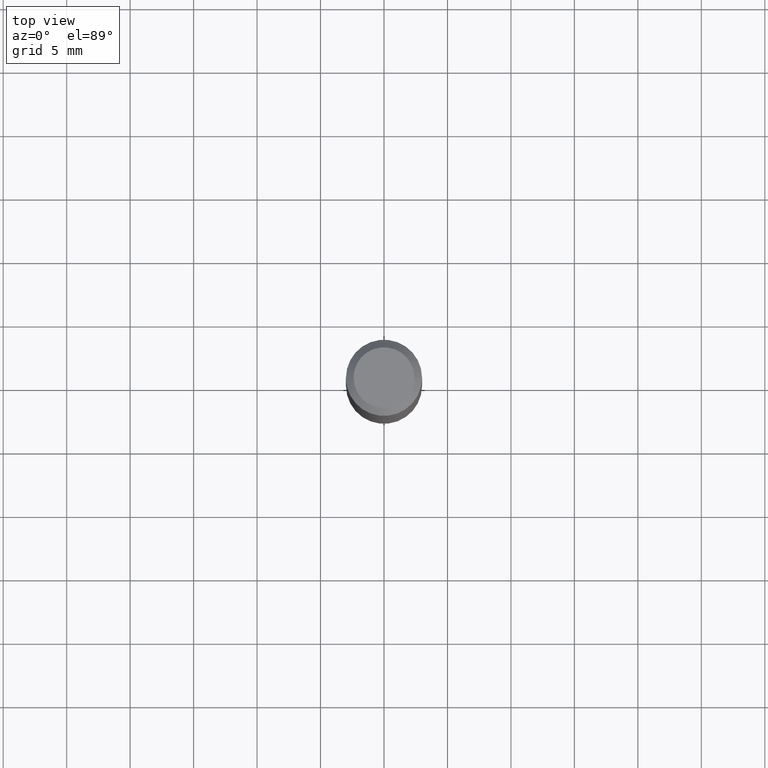
[diagram: clean part render]
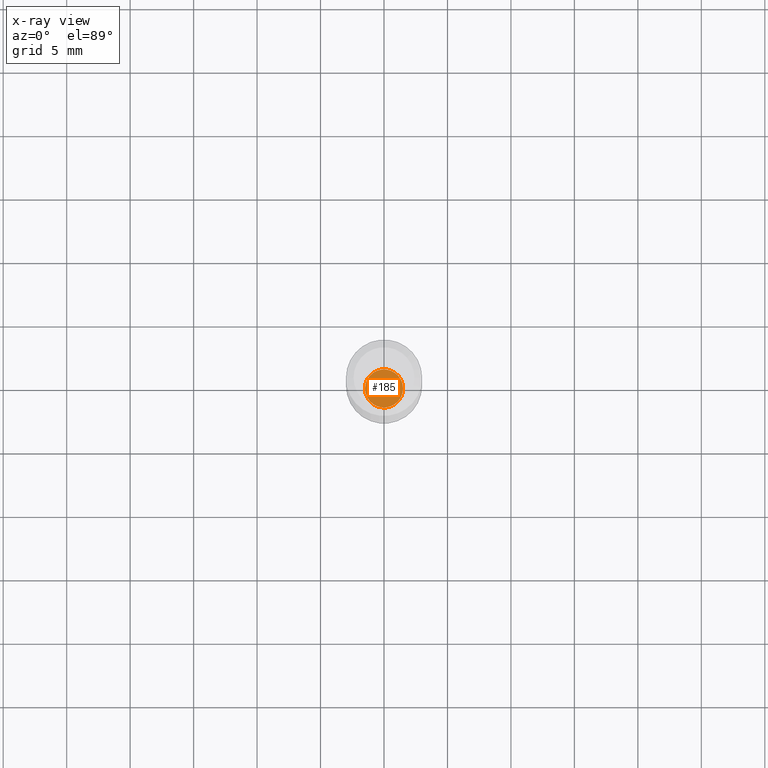
[diagram: x-ray — body ghosted, one internal face saturated and labeled with its STEP entity id]
A machine part, top view, then the same camera in x-ray: the body is ghosted and one INTERNAL B-rep face — a face not visible from any outside direction — is saturated and labeled: STEP entity #185.
In plain terms, the highlighted planar face has unit normal (0, 0, 1).
Its self-contained STEP definition (entity closure, byte-faithful):
#13 = CIRCLE ( 'NONE', #52, 1.500000000000016431 ) ;
#37 = EDGE_LOOP ( 'NONE', ( #280 ) ) ;
#52 = AXIS2_PLACEMENT_3D ( 'NONE', #84, #235, #201 ) ;
#84 = CARTESIAN_POINT ( 'NONE',  ( -3.647148231924723565E-13, 0.0000000000000000000, -48.99999999999999289 ) ) ;
#106 = FACE_OUTER_BOUND ( 'NONE', #37, .T. ) ;
#118 = DIRECTION ( 'NONE',  ( 1.000000000000000000, 0.0000000000000000000, -6.982962677686266711E-15 ) ) ;
#134 = EDGE_CURVE ( 'NONE', #141, #141, #13, .T. ) ;
#141 = VERTEX_POINT ( 'NONE', #241 ) ;
#163 = AXIS2_PLACEMENT_3D ( 'NONE', #275, #215, #118 ) ;
#182 = PLANE ( 'NONE',  #163 ) ;
#185 = ADVANCED_FACE ( 'NONE', ( #106 ), #182, .T. ) ;
#201 = DIRECTION ( 'NONE',  ( 1.000000000000000000, 0.0000000000000000000, -9.251858538542869670E-15 ) ) ;
#215 = DIRECTION ( 'NONE',  ( 6.982962677686266711E-15, 0.0000000000000000000, 1.000000000000000000 ) ) ;
#235 = DIRECTION ( 'NONE',  ( 6.982962677686266711E-15, 0.0000000000000000000, 1.000000000000000000 ) ) ;
#241 = CARTESIAN_POINT ( 'NONE',  ( 1.499999999999651834, 0.0000000000000000000, -49.00000000000000711 ) ) ;
#275 = CARTESIAN_POINT ( 'NONE',  ( 1.499999999999650724, 0.0000000000000000000, -49.00000000000000711 ) ) ;
#280 = ORIENTED_EDGE ( 'NONE', *, *, #134, .T. ) ;